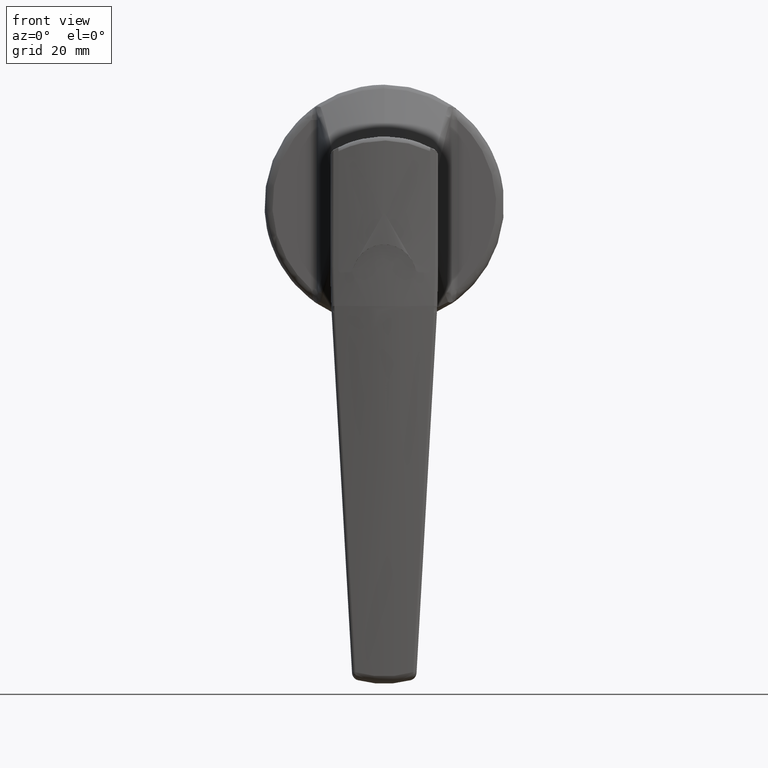
[diagram: clean part render]
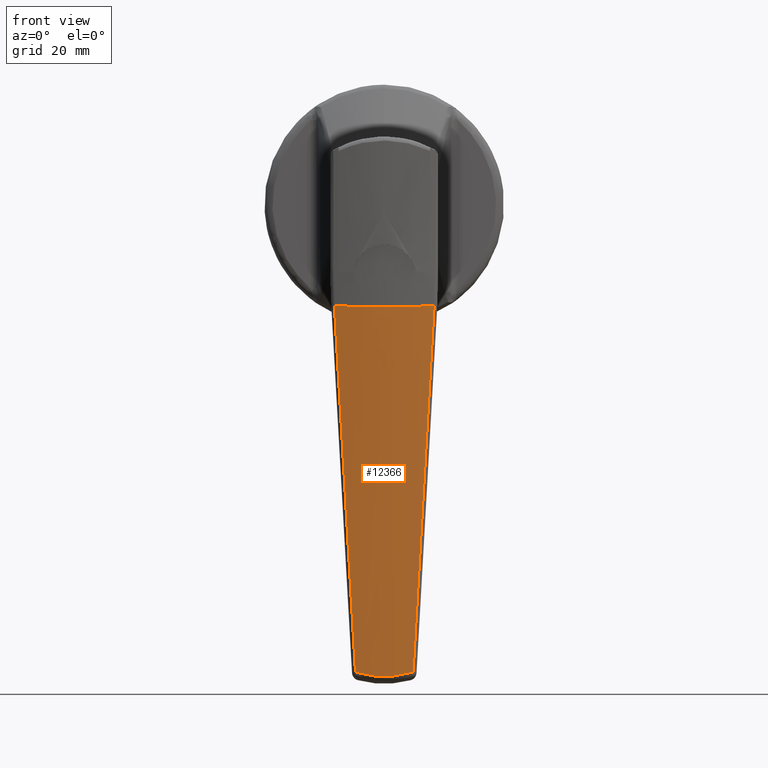
[diagram: same view with one face highlighted and labeled with its STEP entity id]
A machine part, front view. The second image highlights one B-rep face of the part: STEP entity #12366.
In plain terms, the highlighted face is a freeform B-spline surface patch.
Its self-contained STEP definition (entity closure, byte-faithful):
#7333=CARTESIAN_POINT('',(-39.909857933490898,7.213790736045410,-117.084794618973010));
#7334=VERTEX_POINT('',#7333);
#7335=CARTESIAN_POINT('',(-39.909857933490848,-7.213790736045429,-117.084794618973210));
#7336=VERTEX_POINT('',#7335);
#7337=CARTESIAN_POINT('',(-39.909857933490898,7.213790736045410,-117.084794618973010));
#7338=CARTESIAN_POINT('',(-39.965843515855482,6.627496043275496,-117.265314138344390));
#7339=CARTESIAN_POINT('',(-40.015422400020782,6.037432898611465,-117.422799866397600));
#7340=CARTESIAN_POINT('',(-40.101143519574478,4.849919290424683,-117.692897461019400));
#7341=CARTESIAN_POINT('',(-40.173429968805053,3.655017708117561,-117.918116204373310));
#7342=CARTESIAN_POINT('',(-40.217692363016852,2.445391861550925,-118.054288793521200));
#7343=CARTESIAN_POINT('',(-40.247386397903689,1.228310382515253,-118.145493331188600));
#7344=CARTESIAN_POINT('',(-40.254949478572968,0.616020772614438,-118.168614020875400));
#7345=CARTESIAN_POINT('',(-40.254948446701739,-0.616146847933066,-118.168610861538800));
#7346=CARTESIAN_POINT('',(-40.247384865291657,-1.228396495509741,-118.145488634921800));
#7347=CARTESIAN_POINT('',(-40.217690462913602,-2.445446443959838,-118.054282946281700));
#7348=CARTESIAN_POINT('',(-40.173427575749479,-3.655046255342052,-117.918111156287590));
#7349=CARTESIAN_POINT('',(-40.101142635036943,-4.849932405872104,-117.692894685629700));
#7350=CARTESIAN_POINT('',(-40.015422139097353,-6.037435651476795,-117.422799032568610));
#7351=CARTESIAN_POINT('',(-39.965843504135862,-6.627496166005619,-117.265314100555900));
#7352=CARTESIAN_POINT('',(-39.909857933490848,-7.213790736045453,-117.084794618973010));
#7353=B_SPLINE_CURVE_WITH_KNOTS('',3,(#7337,#7338,#7339,#7340,#7341,#7342,#7343,#7344,#7345,#7346,#7347,#7348,#7349,#7350,#7351,#7352),.UNSPECIFIED.,.F.,.U.,(4,2,1,2,2,2,1,2,4),(0.0,0.125000000000000,0.250000000000000,0.375000000000000,0.500000000000000,0.625000000000000,0.750000000000000,0.875000000000000,1.0),.UNSPECIFIED.);
#7354=EDGE_CURVE('',#7334,#7336,#7353,.T.);
#8287=CARTESIAN_POINT('',(-46.785711378948093,-12.473112755895841,-25.431464014060850));
#8288=VERTEX_POINT('',#8287);
#8319=CARTESIAN_POINT('',(-46.785711378948093,12.473112755895841,-25.431464014060751));
#8320=VERTEX_POINT('',#8319);
#8334=CARTESIAN_POINT('',(-46.785711378948093,-12.473112755895841,-25.431464014060850));
#8335=CARTESIAN_POINT('',(-49.436443152901298,4.163336E-014,-25.545265562781950));
#8336=CARTESIAN_POINT('',(-46.785711378948093,12.473112755895841,-25.431464014060751));
#8344=(BOUNDED_CURVE()B_SPLINE_CURVE(2,(#8334,#8335,#8336),.UNSPECIFIED.,.F.,.U.)CURVE()GEOMETRIC_REPRESENTATION_ITEM()QUASI_UNIFORM_CURVE()RATIONAL_B_SPLINE_CURVE((1.0,0.978153228478527,1.0))REPRESENTATION_ITEM(''));
#8345=EDGE_CURVE('',#8288,#8320,#8344,.T.);
#8567=CARTESIAN_POINT('',(-46.671376794683603,12.389688932985900,-26.992386918501399));
#8568=VERTEX_POINT('',#8567);
#8582=CARTESIAN_POINT('',(-46.785711378948093,12.473112755895841,-25.431464014060751));
#8583=CARTESIAN_POINT('',(-46.747170335792632,12.447384159813049,-25.951851318711050));
#8584=CARTESIAN_POINT('',(-46.709061837354817,12.419576423002461,-26.472159186351970));
#8585=CARTESIAN_POINT('',(-46.671376794683603,12.389688932985900,-26.992386918501399));
#8586=QUASI_UNIFORM_CURVE('',3,(#8582,#8583,#8584,#8585),.UNSPECIFIED.,.F.,.U.);
#8587=EDGE_CURVE('',#8320,#8568,#8586,.T.);
#8620=CARTESIAN_POINT('',(-46.671376794683603,-12.389688932985900,-26.992386918501602));
#8621=VERTEX_POINT('',#8620);
#8645=CARTESIAN_POINT('',(-46.671376794683603,-12.389688932985880,-26.992386918501602));
#8646=CARTESIAN_POINT('',(-46.709061837354817,-12.419576423002439,-26.472159186352140));
#8647=CARTESIAN_POINT('',(-46.747170335792617,-12.447384159813030,-25.951851318711189));
#8648=CARTESIAN_POINT('',(-46.785711378948093,-12.473112755895819,-25.431464014060850));
#8649=QUASI_UNIFORM_CURVE('',3,(#8645,#8646,#8647,#8648),.UNSPECIFIED.,.F.,.U.);
#8650=EDGE_CURVE('',#8621,#8288,#8649,.T.);
#8852=CARTESIAN_POINT('',(-46.671376794683603,12.389688932985900,-26.992386918501399));
#8853=CARTESIAN_POINT('',(-43.431909587914078,9.820511961474951,-71.712004010442200));
#8854=CARTESIAN_POINT('',(-39.909857933490898,7.213790736045410,-117.084794618973010));
#8862=(BOUNDED_CURVE()B_SPLINE_CURVE(2,(#8852,#8853,#8854),.UNSPECIFIED.,.F.,.U.)CURVE()GEOMETRIC_REPRESENTATION_ITEM()QUASI_UNIFORM_CURVE()RATIONAL_B_SPLINE_CURVE((1.0,0.999043781706573,1.0))REPRESENTATION_ITEM(''));
#8863=EDGE_CURVE('',#8568,#7334,#8862,.T.);
#8917=CARTESIAN_POINT('',(-39.909857933490827,-7.213790736045418,-117.084794618973310));
#8918=CARTESIAN_POINT('',(-43.431909587914241,-9.820511961475102,-71.712004010439870));
#8919=CARTESIAN_POINT('',(-46.671376794683603,-12.389688932985900,-26.992386918501602));
#8927=(BOUNDED_CURVE()B_SPLINE_CURVE(2,(#8917,#8918,#8919),.UNSPECIFIED.,.F.,.U.)CURVE()GEOMETRIC_REPRESENTATION_ITEM()QUASI_UNIFORM_CURVE()RATIONAL_B_SPLINE_CURVE((1.0,0.999043781706486,1.0))REPRESENTATION_ITEM(''));
#8928=EDGE_CURVE('',#7336,#8621,#8927,.T.);
#12344=CARTESIAN_POINT('',(-46.715993278810821,13.687617565856964,-23.037332219717879));
#12345=CARTESIAN_POINT('',(-38.477526869705727,13.687617565856964,-120.410177636956530));
#12346=CARTESIAN_POINT('',(-49.911704302739508,-0.000204496160791,-23.307713123254477));
#12347=CARTESIAN_POINT('',(-41.673237893634422,-0.000204496160792,-120.680558540493250));
#12348=CARTESIAN_POINT('',(-46.715902759079732,-13.688005272834207,-23.037324561075870));
#12349=CARTESIAN_POINT('',(-38.477436349974646,-13.688005272834207,-120.410169978314530));
#12357=(BOUNDED_SURFACE()B_SPLINE_SURFACE(1,2,((#12344,#12346,#12348),(#12345,#12347,#12349)),.UNSPECIFIED.,.F.,.F.,.U.)B_SPLINE_SURFACE_WITH_KNOTS((2,2),(3,3),(0.0,97.720741674546346),(0.0,27.741383964731870),.UNSPECIFIED.)GEOMETRIC_REPRESENTATION_ITEM()RATIONAL_B_SPLINE_SURFACE(((0.997388975650527,0.970926280731550,0.997055853653611),(0.997388975650527,0.970926280731550,0.997055853653611)))REPRESENTATION_ITEM('')SURFACE());
#12358=ORIENTED_EDGE('',*,*,#8863,.T.);
#12359=ORIENTED_EDGE('',*,*,#7354,.T.);
#12360=ORIENTED_EDGE('',*,*,#8928,.T.);
#12361=ORIENTED_EDGE('',*,*,#8650,.T.);
#12362=ORIENTED_EDGE('',*,*,#8345,.T.);
#12363=ORIENTED_EDGE('',*,*,#8587,.T.);
#12364=EDGE_LOOP('',(#12358,#12359,#12360,#12361,#12362,#12363));
#12365=FACE_OUTER_BOUND('',#12364,.T.);
#12366=ADVANCED_FACE('',(#12365),#12357,.T.);